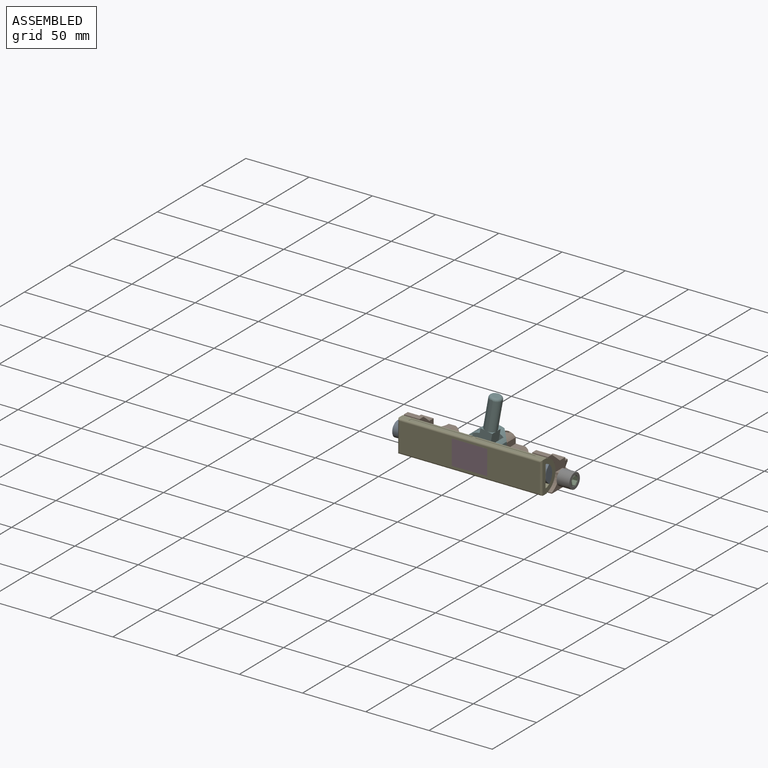
[diagram: assembled view]
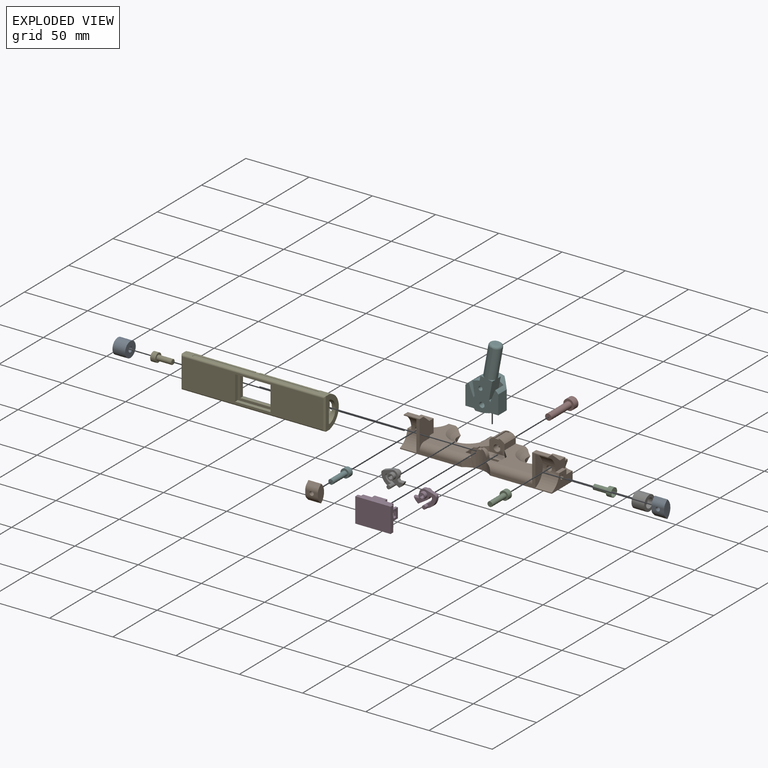
[diagram: exploded view]
GUIDED TOUR — MATED ASSEMBLY WITH SUBASSEMBLIES (Onshape document 3f575c8c6adcad1ca277dd56, AutoMate assembly 3f575c8c6adcad1ca277dd56_c90ff8e94e7f5d9ac81e3531_324395625136054d24e18bfe_default)

This assembly has 16 component occurrences arranged in 15 top-level units: 14 individual components plus 1 subassembly (S0). The tour has two levels: first the top level, where each subassembly is treated as one rigid unit; then each subassembly is toured internally in its own section (nesting deeper than one subassembly level is flattened into its subassembly's section).

Components are labeled P0..P15 across the whole record; subassembly units are labeled S0..S0. A mate is a constraint between two units; its type names the relative motion it leaves free:
  FASTENED — locks the two components together rigidly (no relative motion),
  REVOLUTE — leaves rotation about the listed axis free (a hinge),
  SLIDER — leaves translation along the listed axis free.
Axis/direction vectors are unit vectors and 'through' points are millimeter coordinates, both in the assembly's world frame.

TOP-LEVEL MATES (between units; each subassembly's internal mates are listed in its own section)
  1. REVOLUTE "Revolute 2": P15 <-> P4, axis (0.000, -1.000, 0.003) through (-16.70, -12.69, 11.49) mm
  2. FASTENED "Fastened 6": P10 <-> P9, direction (-1.000, 0.000, 0.000) through (-60.00, 0.00, 0.00) mm
  3. FASTENED "Fastened 7": P7 <-> P10, direction (-1.000, 0.000, 0.000) through (60.00, 0.00, 0.00) mm
  4. FASTENED "Fastened 3": P10 <-> P8, direction (0.000, 1.000, 0.000) through (0.00, 18.50, 0.00) mm
  5. FASTENED "Fastened 2": P10 <-> S0, direction (0.000, 0.000, 1.000) through (-13.00, -4.75, -4.00) mm
  6. FASTENED "Fastened 5": P10 <-> P11, direction (0.000, 1.000, 0.000) through (52.00, 2.00, 5.20) mm
  7. FASTENED "Fastened 8": P7 <-> P2, direction (1.000, 0.000, 0.000) through (66.00, 0.00, 0.00) mm
  8. FASTENED "Fastened 9": P13 <-> P9, direction (1.000, 0.000, 0.000) through (-66.00, 0.00, 0.00) mm
  9. FASTENED "Fastened 4": P10 <-> P14, direction (0.000, 1.000, 0.000) through (-52.00, 2.00, 5.20) mm
  10. REVOLUTE "Revolute 1": P4 <-> P10, axis (-1.000, 0.000, 0.000) through (47.00, -15.71, 5.20) mm
  11. FASTENED "Fastened 1": P12 <-> P4, direction (0.000, -1.000, 0.003) through (-12.00, -15.74, -2.50) mm
  12. REVOLUTE "Revolute 3": P3 <-> P4, axis (0.000, -1.000, 0.003) through (16.70, -12.69, 11.49) mm
  13. SLIDER "Slider 1": P14 <-> P1, axis (0.000, 1.000, 0.000) through (-52.00, -13.75, 5.20) mm

TOP-LEVEL ASSEMBLY ORDER
  1. P10 — the base component [order heuristic]
  2. P4 — core [order heuristic]
  3. S0 — core [order heuristic]
  4. P2 — core [order heuristic]
  5. P8 — core [order heuristic]
  6. P13 — core [order heuristic]
  7. P11 — core [order heuristic]
  8. P14 — core [order heuristic]
  9. P7 — core [order heuristic]
  10. P3 — core [order heuristic]
  11. P12 — core [order heuristic]
  12. P9 — core [order heuristic]
  13. P15 — core [order heuristic]
  14. P0 [order verified]
  15. P1 [order verified]
Order-tag legend:
  [order verified] — this step's position reverses a verified removal order: the component was checked to insert without passing through the ones already placed.
  [order heuristic] — the first 13 components form the assembly's core: parts whose collision-free extraction could not be verified, listed in mate-graph order.

Of the 16 component occurrences, 1 carries the full construction recipe — the FeatureScript program that regenerates the part's solid from scratch; the rest are supplied as boundary geometry only. Each toured unit is shown spotlighted twice — assembled, then exploded with a leader line back to its socket (green = recipe-attached component, orange = geometry-only, blue = subassembly unit; the rest desaturated gray).
NOTE — this tour is split across 2 documents so each fits a 32k-token context. This is document 1: the component sections continue in the remaining 1 document, each repeating the header above.
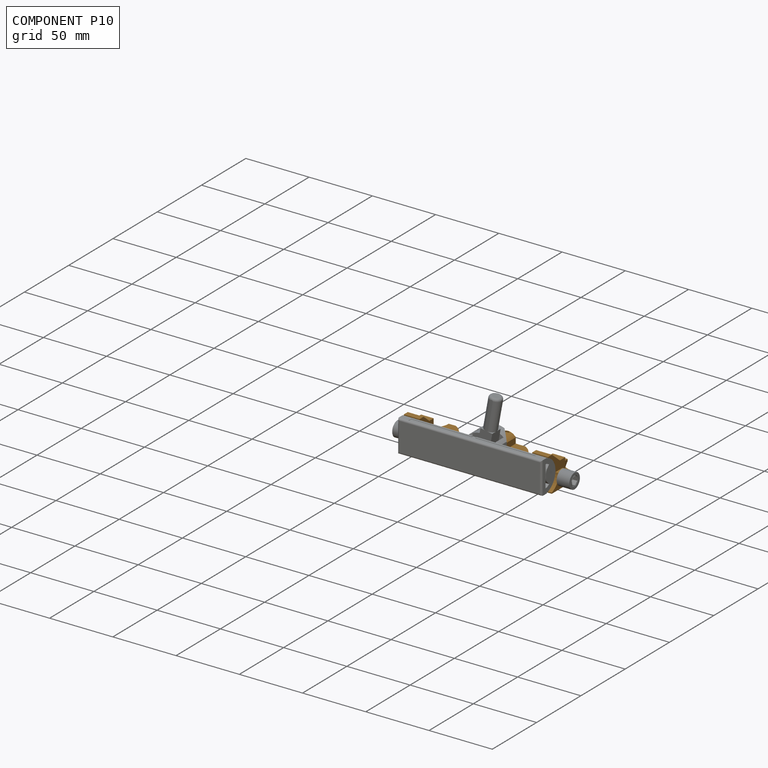
[diagram: component P10 — assembled]
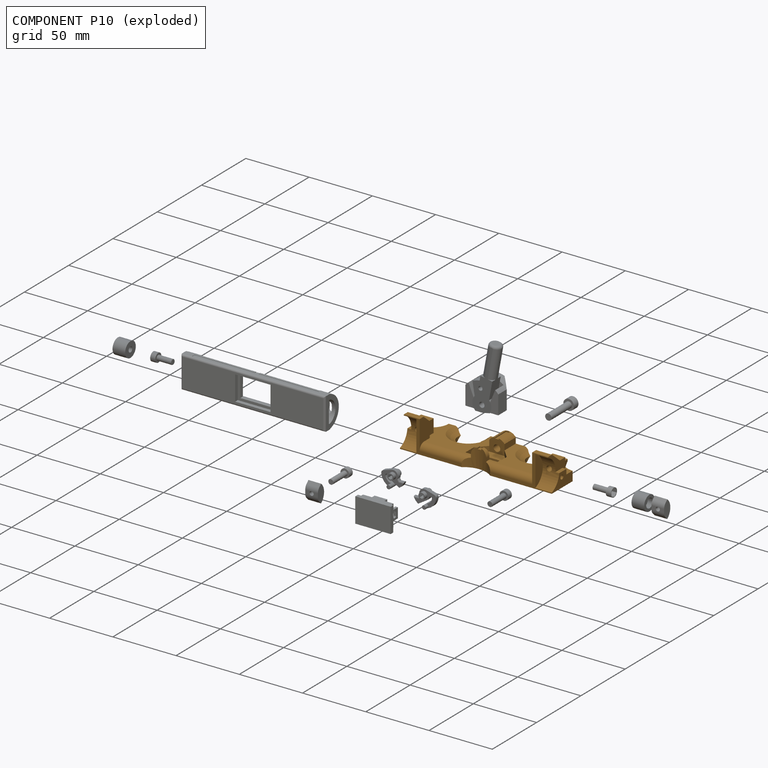
[diagram: component P10 — exploded]
COMPONENT P10 — geometry summary (no construction recipe available for this part):
  bounding box: 120.1 x 37.3 x 25.5 mm
  B-rep topology: 1 solid, 84 faces, 476 edges
  volume: 25995 mm^3 (23% of its bounding box)
  symmetry: mirror-symmetric across its x mid-plane
Held by: FASTENED mate "Fastened 6" to P9; FASTENED mate "Fastened 7" to P7; FASTENED mate "Fastened 3" to P8; FASTENED mate "Fastened 2" to P5; FASTENED mate "Fastened 5" to P11; FASTENED mate "Fastened 4" to P14; REVOLUTE mate "Revolute 1" to P4.
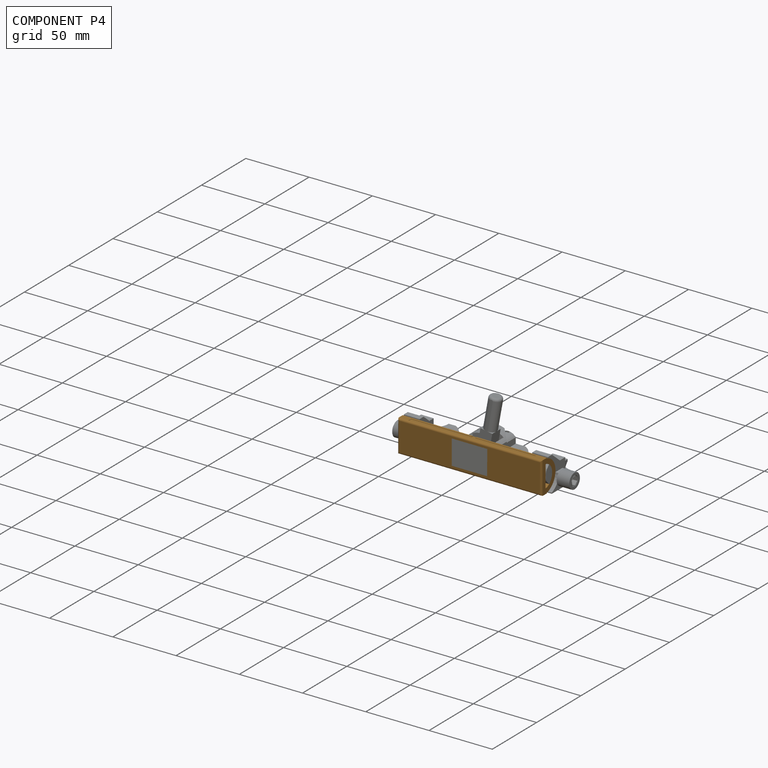
[diagram: component P4 — assembled]
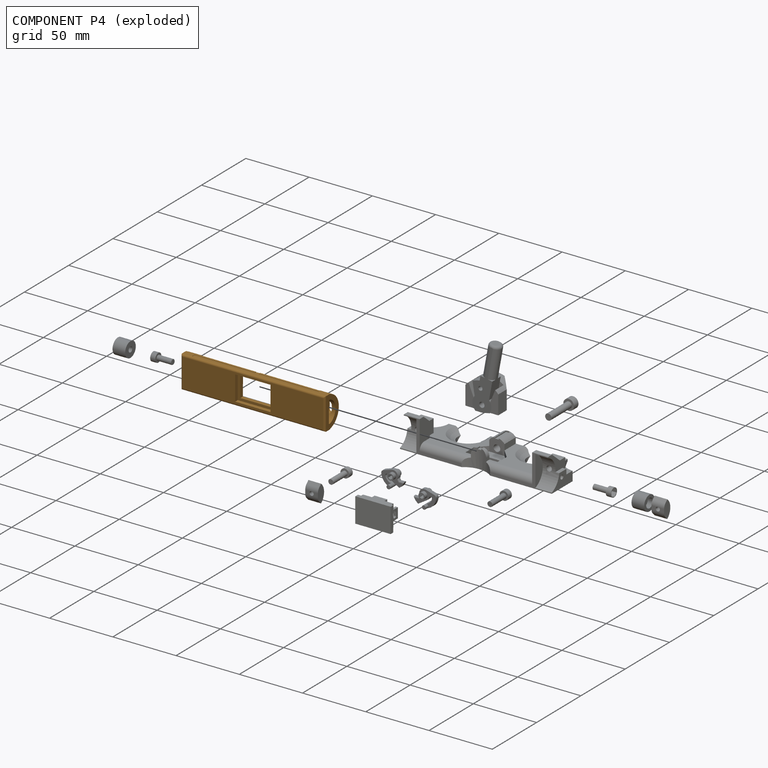
[diagram: component P4 — exploded]
COMPONENT P4 — geometry summary (no construction recipe available for this part):
  bounding box: 114.0 x 25.4 x 15.7 mm
  B-rep topology: 1 solid, 74 faces, 398 edges
  volume: 12789 mm^3 (28% of its bounding box)
  symmetry: mirror-symmetric across its x mid-plane
Held by: REVOLUTE mate "Revolute 2" to P15; REVOLUTE mate "Revolute 1" to P10; FASTENED mate "Fastened 1" to P12; REVOLUTE mate "Revolute 3" to P3.
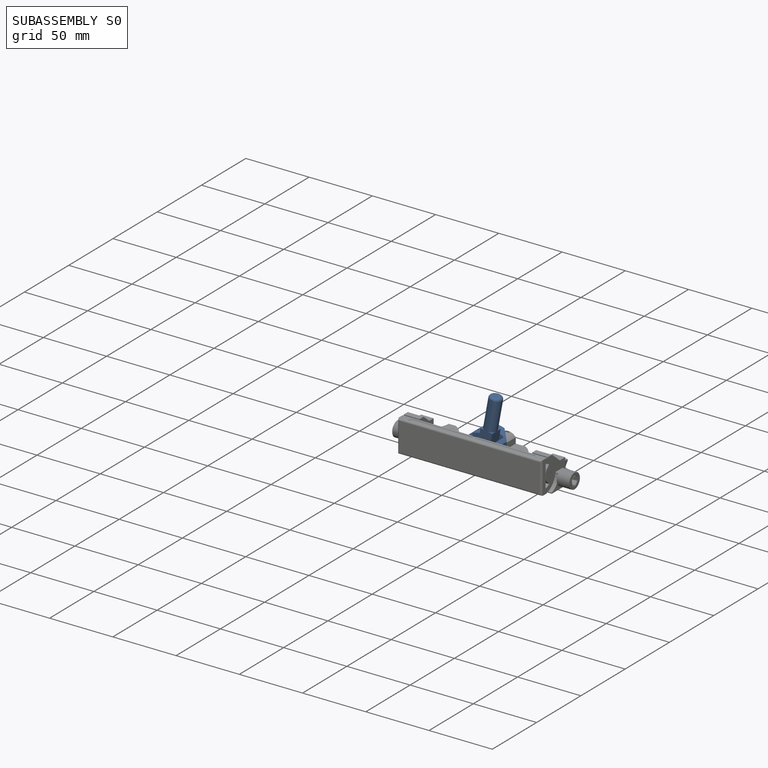
[diagram: subassembly S0 — assembled]
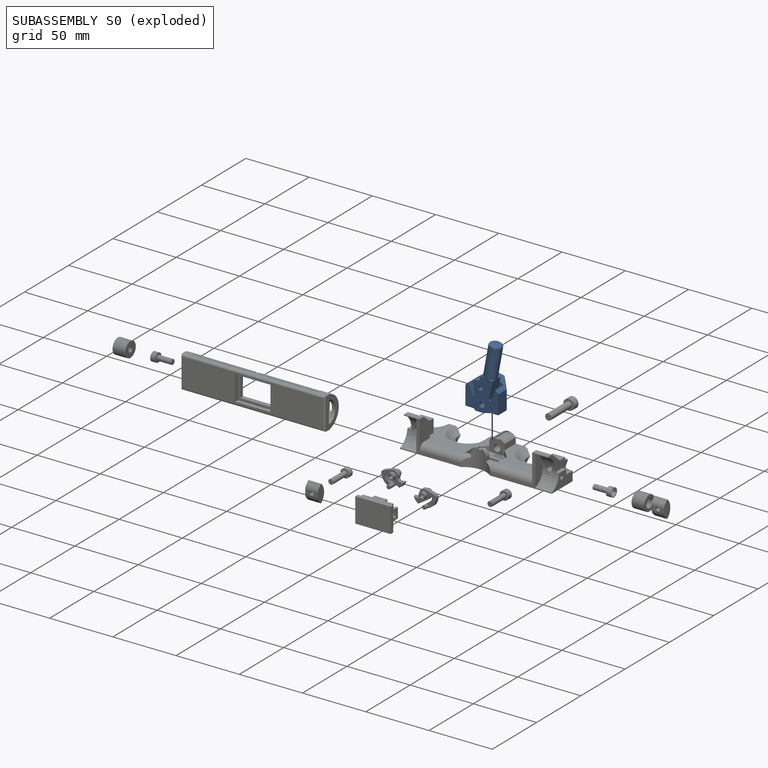
[diagram: subassembly S0 — exploded]
SUBASSEMBLY S0 — 2 components (P5, P6), of which 1 recipe-attached; toured below.
Held by: FASTENED mate "Fastened 2" to P10.
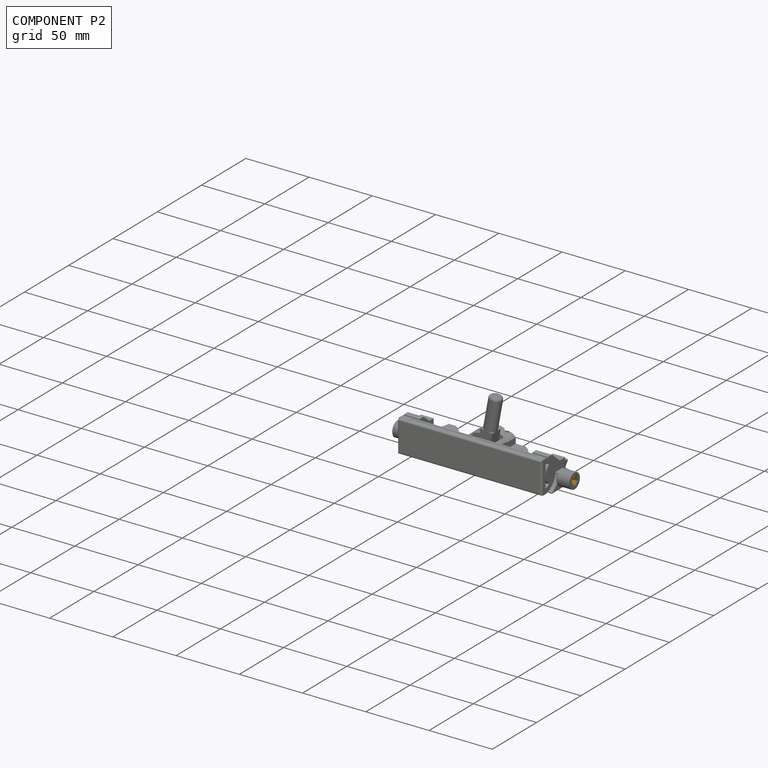
[diagram: component P2 — assembled]
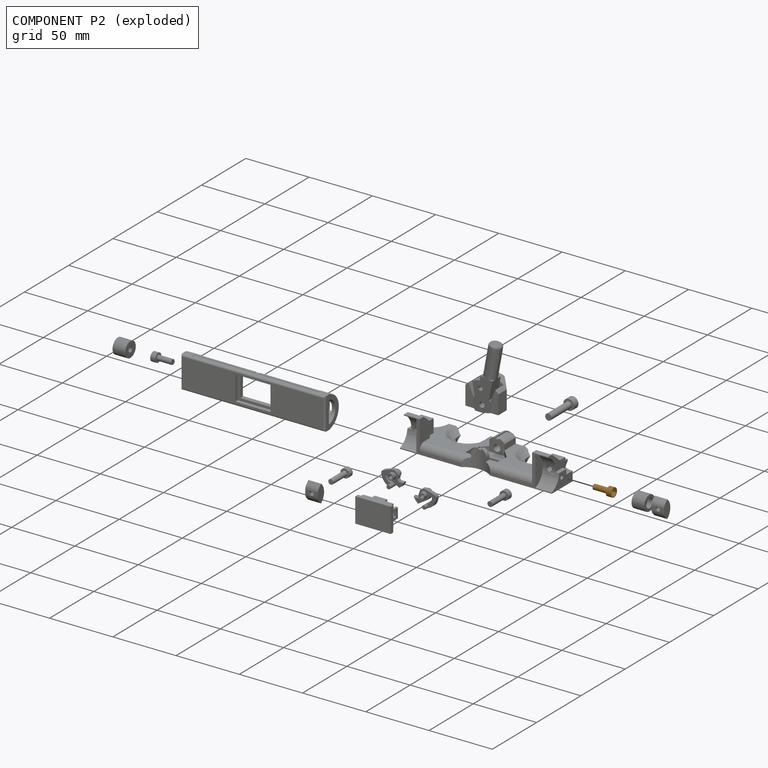
[diagram: component P2 — exploded]
COMPONENT P2 — geometry summary (no construction recipe available for this part):
  bounding box: 15.5 x 7.0 x 7.0 mm
  B-rep topology: 1 solid, 12 faces, 48 edges
  volume: 189 mm^3 (25% of its bounding box)
  symmetry: 6-fold rotationally symmetric about the y axis
Held by: FASTENED mate "Fastened 8" to P7.
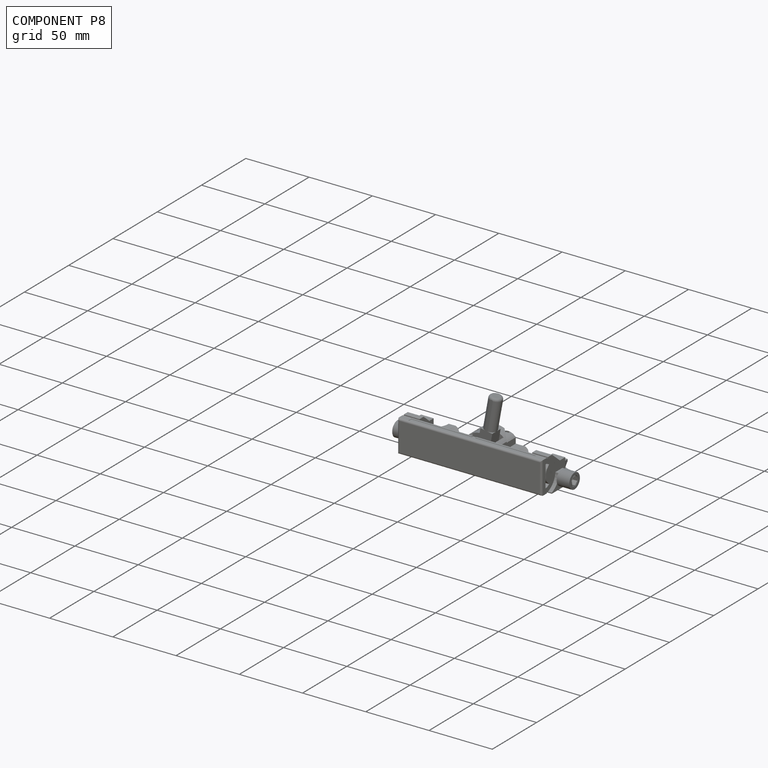
[diagram: component P8 — assembled]
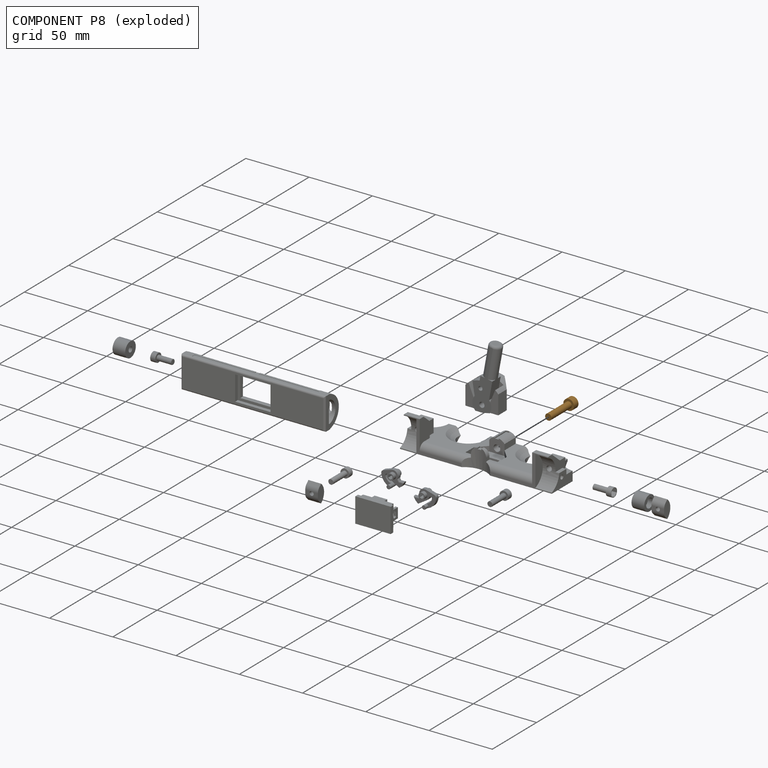
[diagram: component P8 — exploded]
COMPONENT P8 — geometry summary (no construction recipe available for this part):
  bounding box: 28.0 x 8.5 x 8.5 mm
  B-rep topology: 1 solid, 12 faces, 48 edges
  volume: 664 mm^3 (33% of its bounding box)
  symmetry: 6-fold rotationally symmetric about the y axis
Held by: FASTENED mate "Fastened 3" to P10.
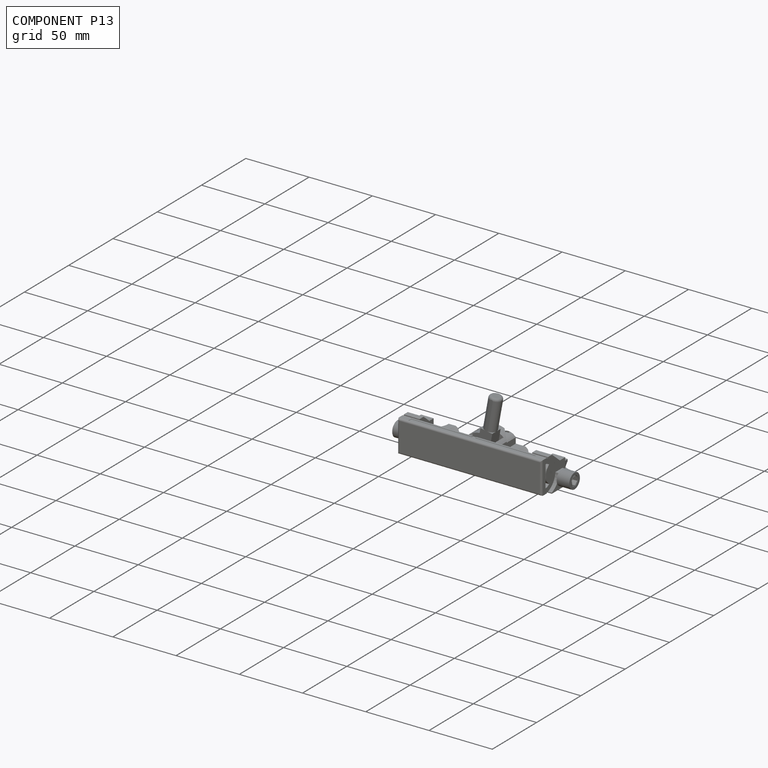
[diagram: component P13 — assembled]
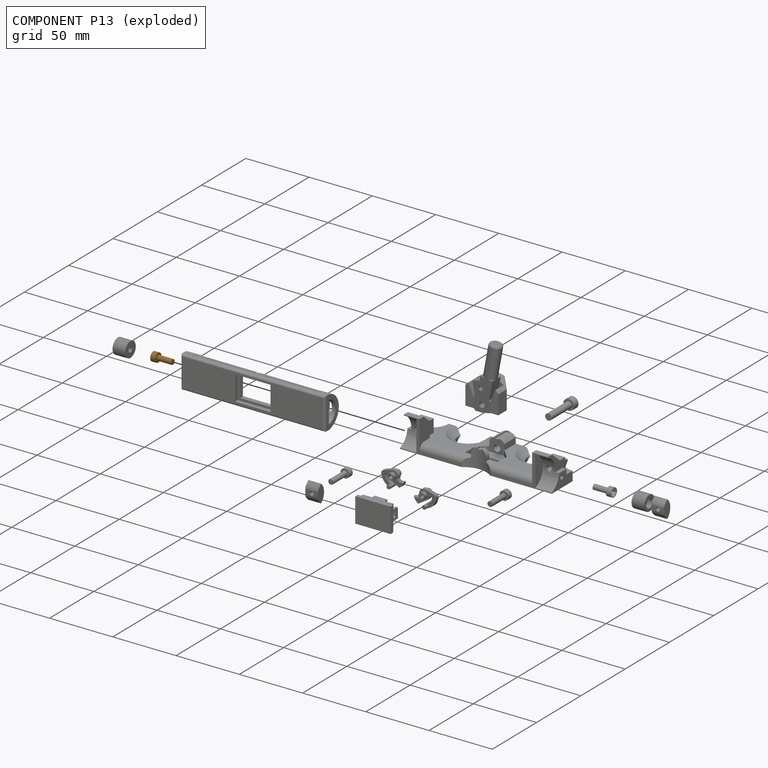
[diagram: component P13 — exploded]
COMPONENT P13 — geometry summary (no construction recipe available for this part):
  bounding box: 15.5 x 7.0 x 7.0 mm
  B-rep topology: 1 solid, 12 faces, 48 edges
  volume: 189 mm^3 (25% of its bounding box)
  symmetry: 6-fold rotationally symmetric about the y axis
Held by: FASTENED mate "Fastened 9" to P9.
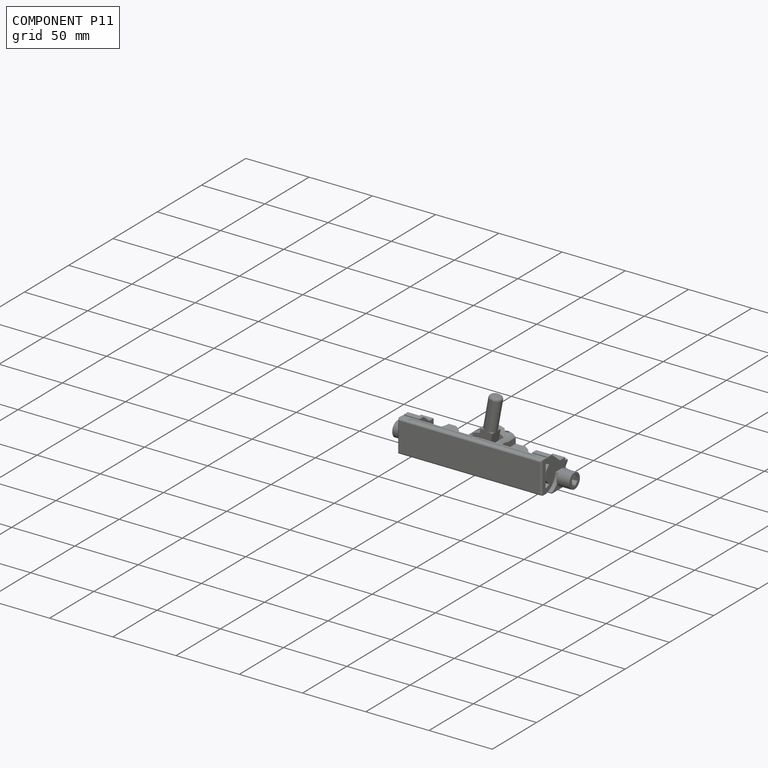
[diagram: component P11 — assembled]
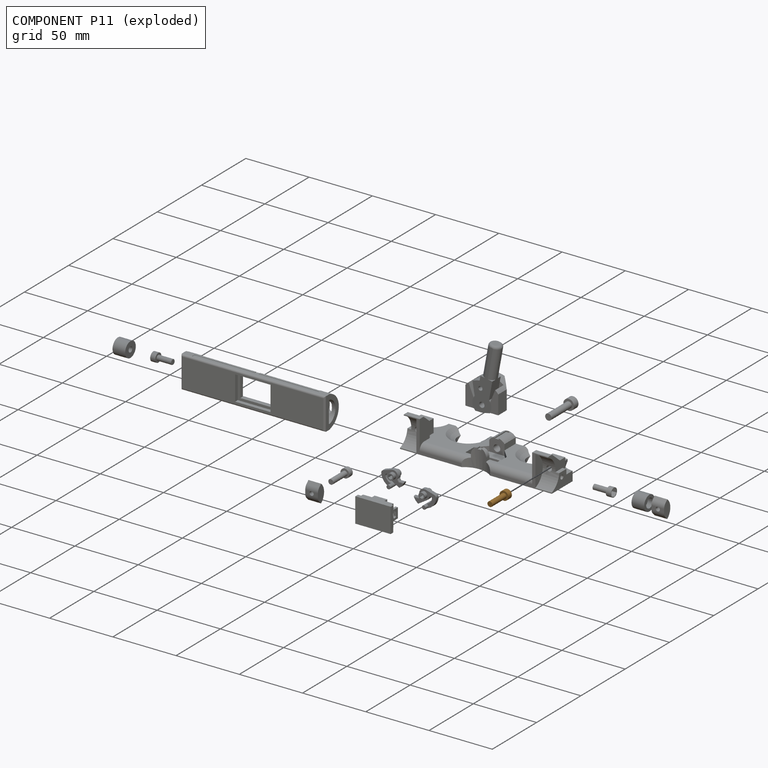
[diagram: component P11 — exploded]
COMPONENT P11 — geometry summary (no construction recipe available for this part):
  bounding box: 19.8 x 7.0 x 7.0 mm
  B-rep topology: 1 solid, 12 faces, 48 edges
  volume: 243 mm^3 (25% of its bounding box)
  symmetry: 6-fold rotationally symmetric about the y axis
Held by: FASTENED mate "Fastened 5" to P10.
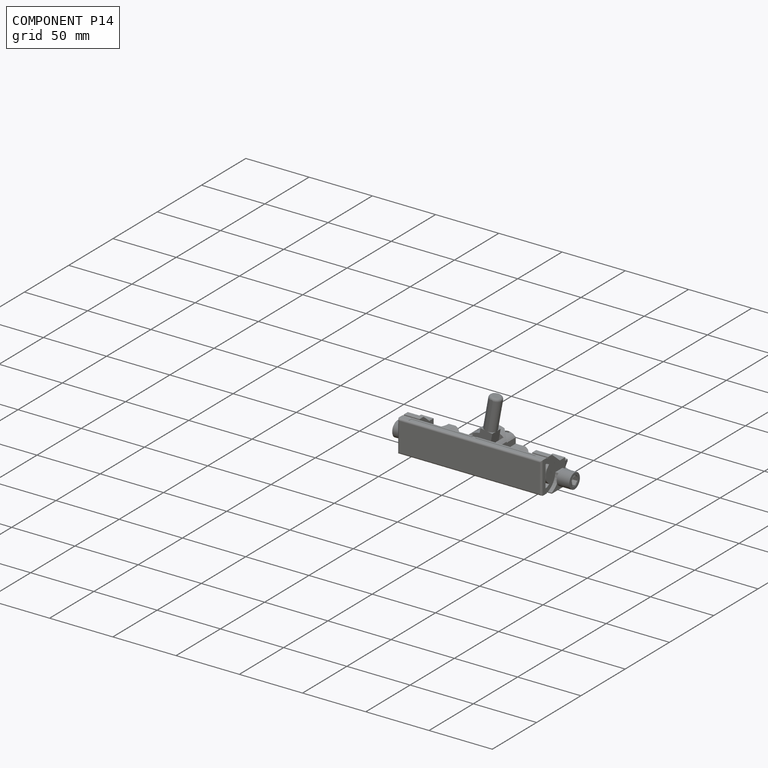
[diagram: component P14 — assembled]
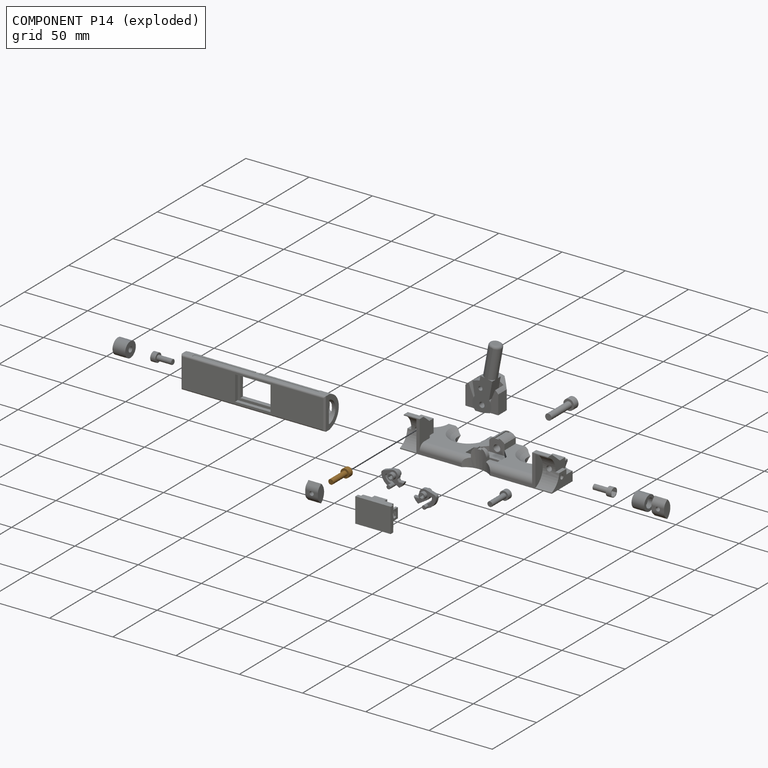
[diagram: component P14 — exploded]
COMPONENT P14 — geometry summary (no construction recipe available for this part):
  bounding box: 19.8 x 7.0 x 7.0 mm
  B-rep topology: 1 solid, 12 faces, 48 edges
  volume: 243 mm^3 (25% of its bounding box)
  symmetry: 6-fold rotationally symmetric about the y axis
Held by: FASTENED mate "Fastened 4" to P10; SLIDER mate "Slider 1" to P1.
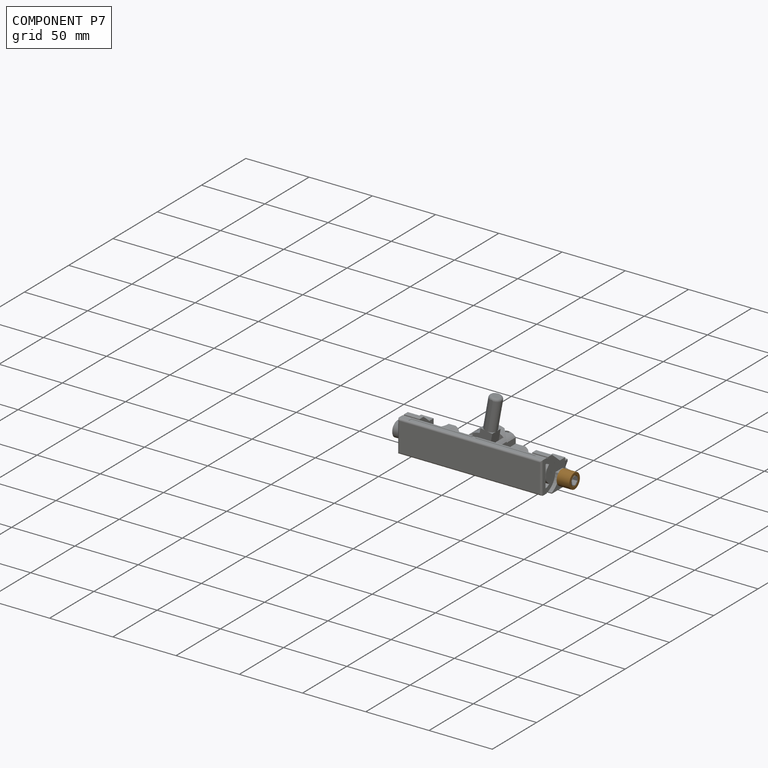
[diagram: component P7 — assembled]
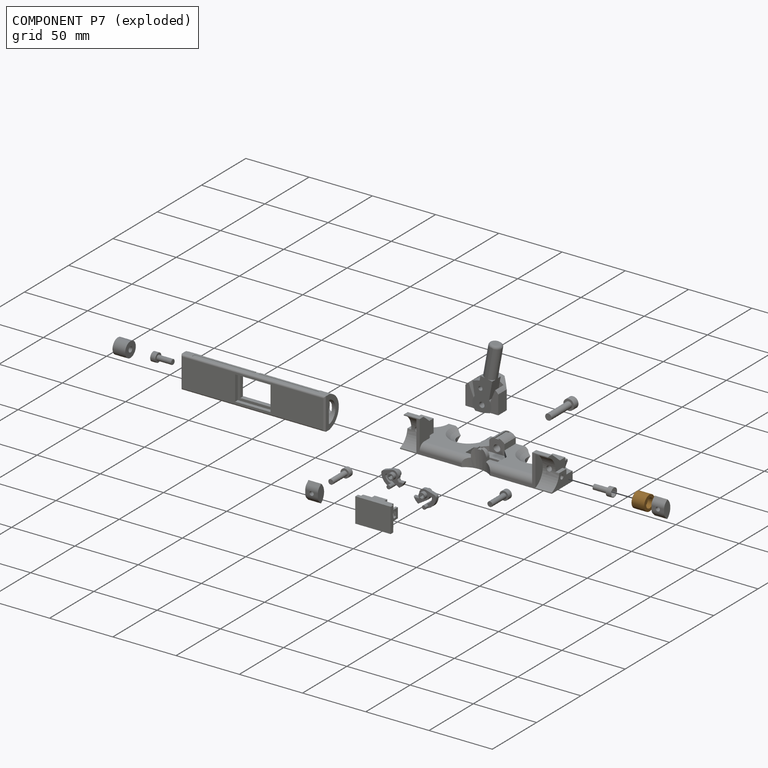
[diagram: component P7 — exploded]
COMPONENT P7 — geometry summary (no construction recipe available for this part):
  bounding box: 12.0 x 12.0 x 10.0 mm
  B-rep topology: 1 solid, 6 faces, 20 edges
  volume: 871 mm^3 (60% of its bounding box)
  symmetry: revolution-symmetric about the x axis through its bounding-box center; mirror-symmetric across its y mid-plane, z mid-plane
Held by: FASTENED mate "Fastened 7" to P10; FASTENED mate "Fastened 8" to P2.
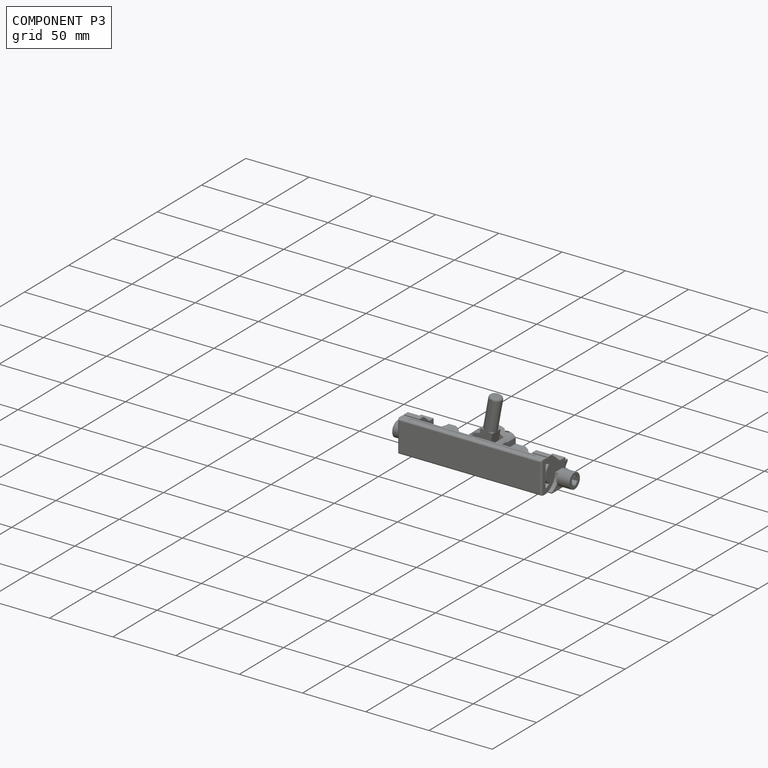
[diagram: component P3 — assembled]
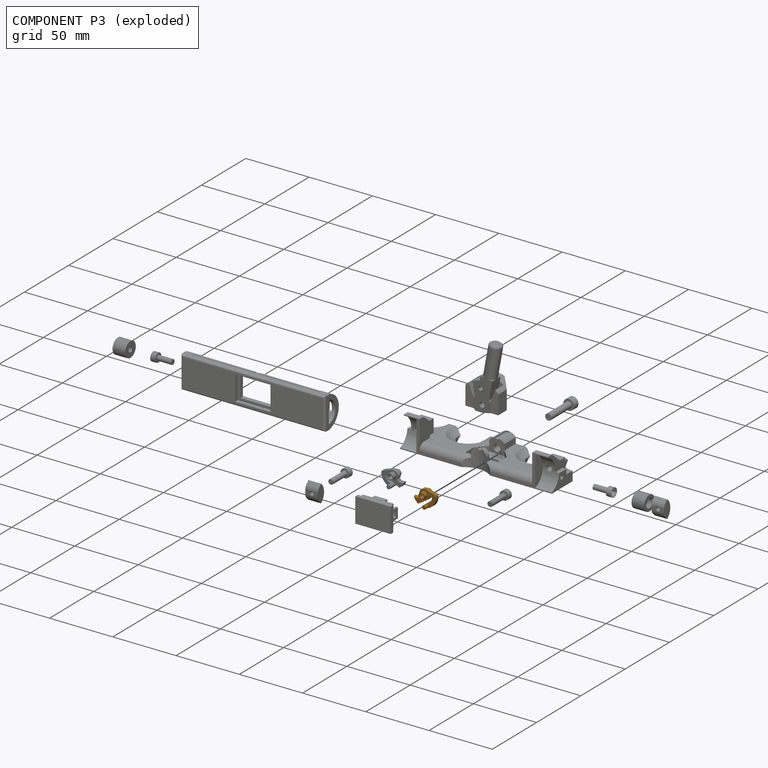
[diagram: component P3 — exploded]
COMPONENT P3 — geometry summary (no construction recipe available for this part):
  bounding box: 17.8 x 13.1 x 9.0 mm
  B-rep topology: 1 solid, 31 faces, 154 edges
  volume: 455 mm^3 (22% of its bounding box)
  symmetry: mirror-symmetric across its y mid-plane
Held by: REVOLUTE mate "Revolute 3" to P4.
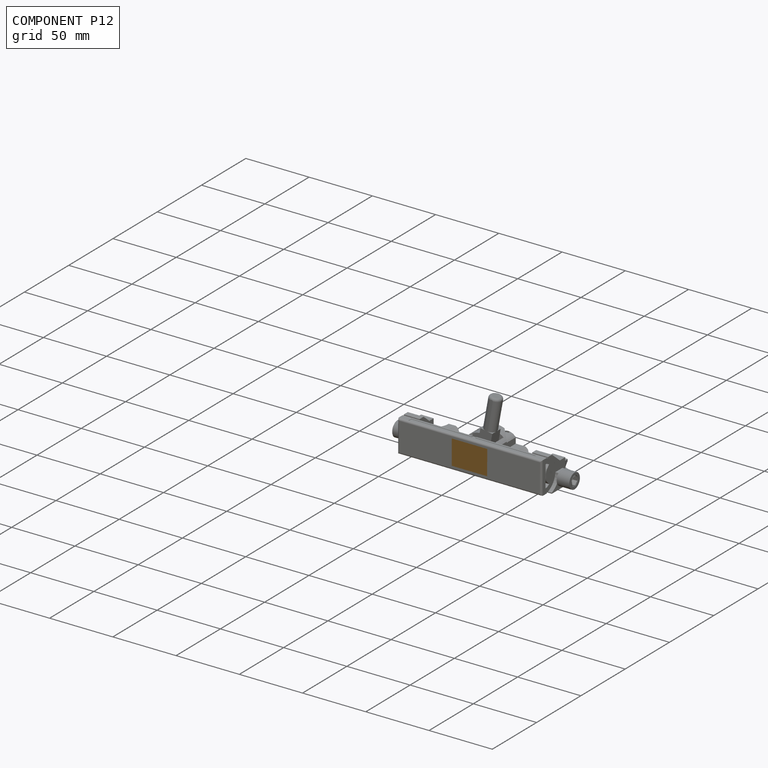
[diagram: component P12 — assembled]
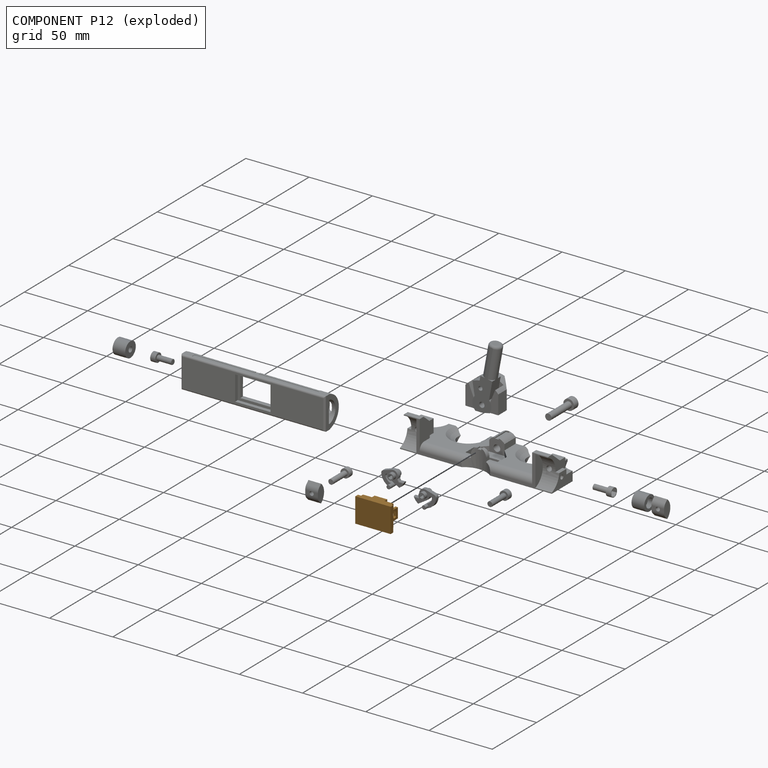
[diagram: component P12 — exploded]
COMPONENT P12 — geometry summary (no construction recipe available for this part):
  bounding box: 28.0 x 19.5 x 11.0 mm
  B-rep topology: 1 solid, 56 faces, 312 edges
  volume: 2113 mm^3 (35% of its bounding box)
  symmetry: mirror-symmetric across its x mid-plane
Held by: FASTENED mate "Fastened 1" to P4.
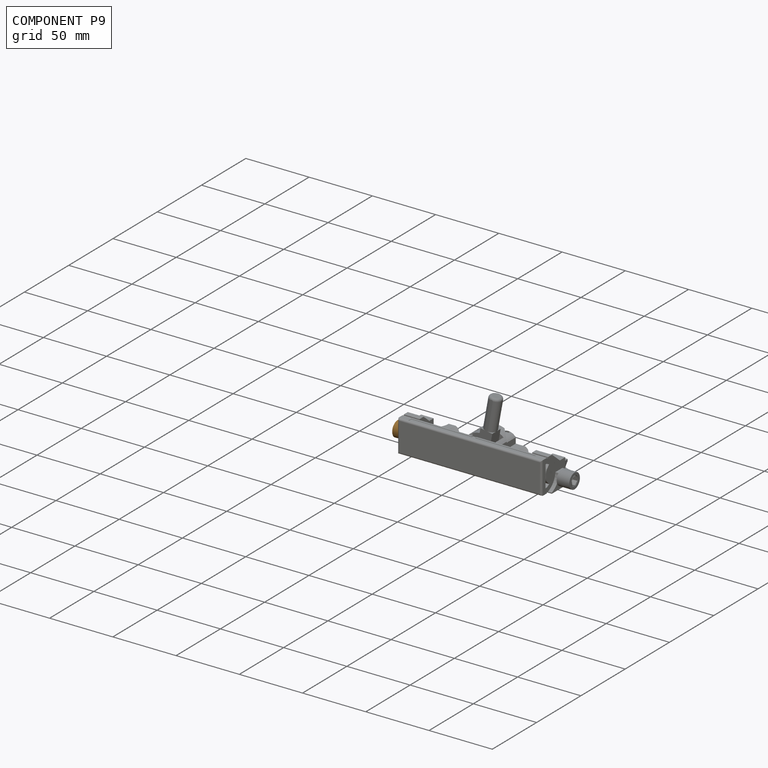
[diagram: component P9 — assembled]
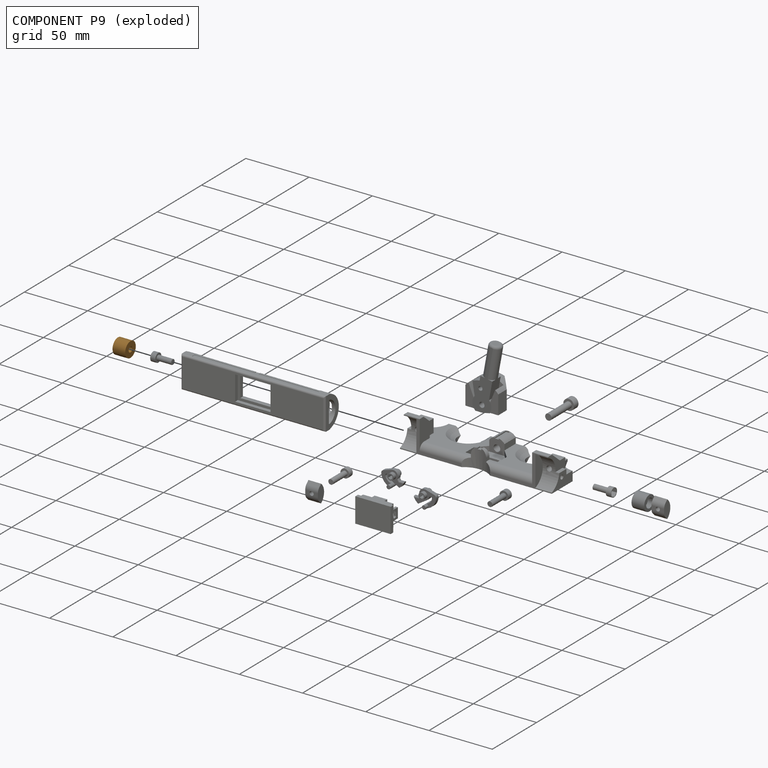
[diagram: component P9 — exploded]
COMPONENT P9 — geometry summary (no construction recipe available for this part):
  bounding box: 12.0 x 12.0 x 10.0 mm
  B-rep topology: 1 solid, 6 faces, 20 edges
  volume: 871 mm^3 (60% of its bounding box)
  symmetry: revolution-symmetric about the x axis through its bounding-box center; mirror-symmetric across its y mid-plane, z mid-plane
Held by: FASTENED mate "Fastened 6" to P10; FASTENED mate "Fastened 9" to P13.
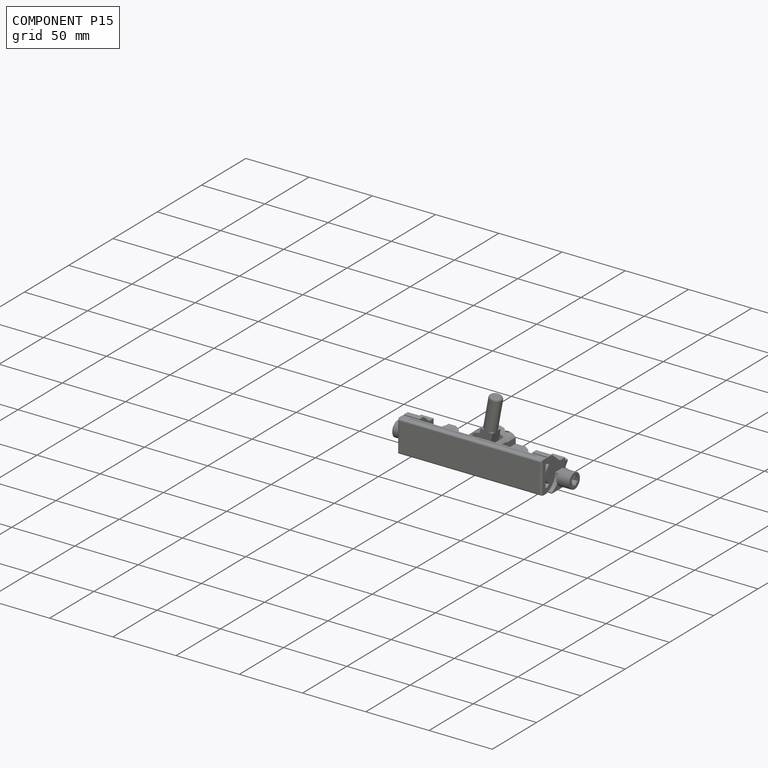
[diagram: component P15 — assembled]
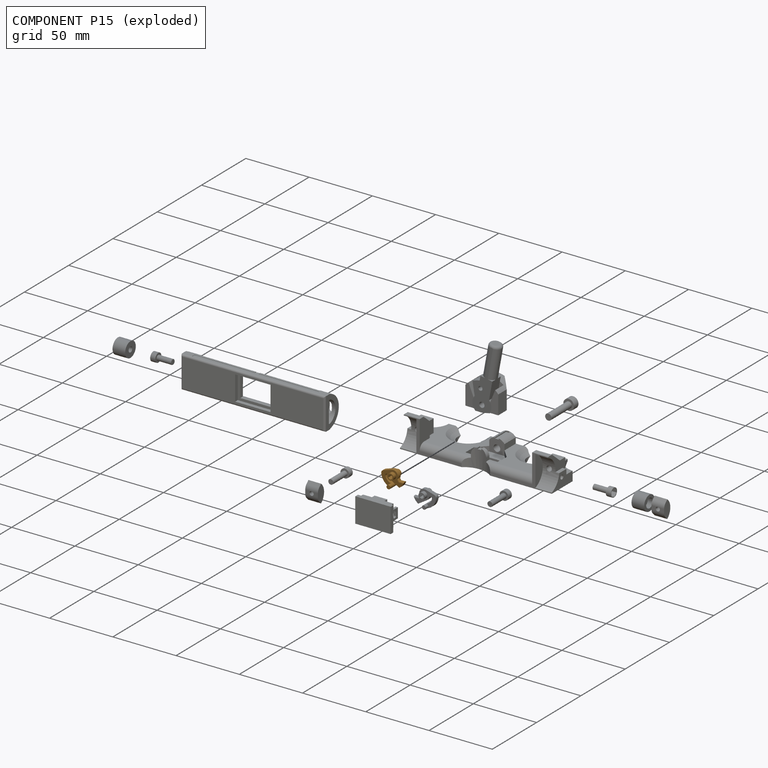
[diagram: component P15 — exploded]
COMPONENT P15 — geometry summary (no construction recipe available for this part):
  bounding box: 17.8 x 13.1 x 9.0 mm
  B-rep topology: 1 solid, 31 faces, 154 edges
  volume: 455 mm^3 (22% of its bounding box)
  symmetry: mirror-symmetric across its y mid-plane
Held by: REVOLUTE mate "Revolute 2" to P4.
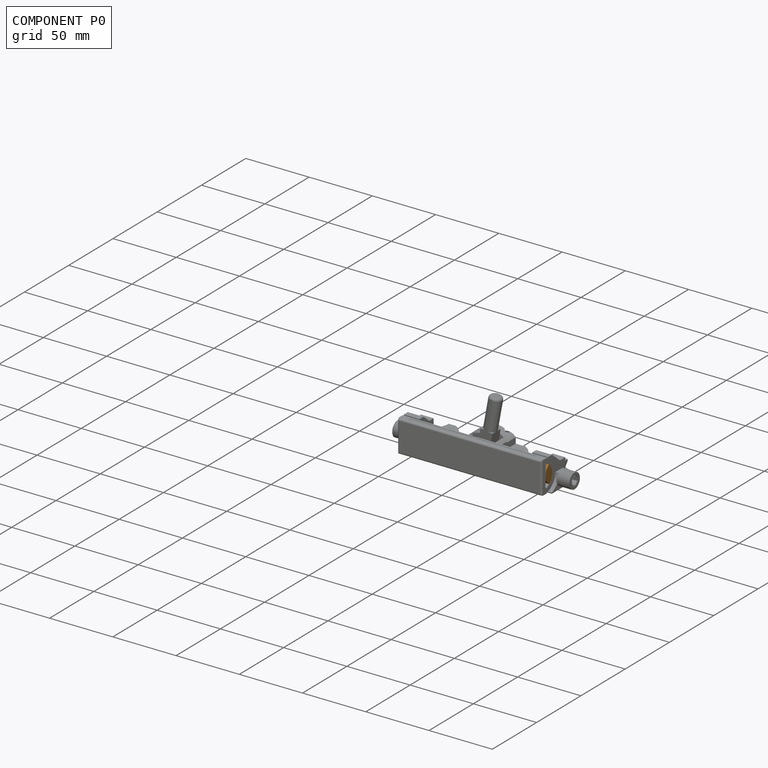
[diagram: component P0 — assembled]
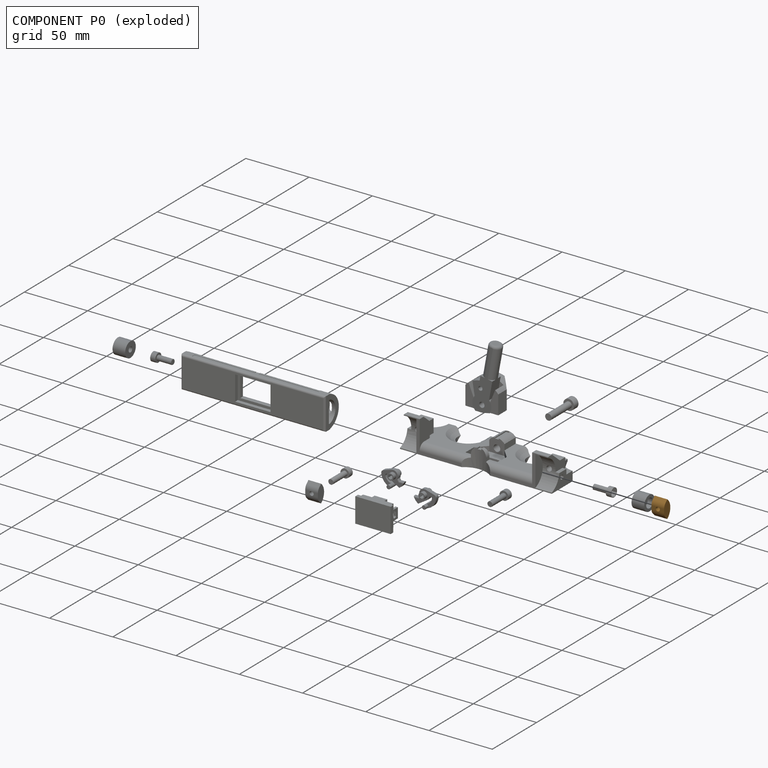
[diagram: component P0 — exploded]
COMPONENT P0 — geometry summary (no construction recipe available for this part):
  bounding box: 14.0 x 10.0 x 7.0 mm
  B-rep topology: 1 solid, 12 faces, 66 edges
  volume: 645 mm^3 (66% of its bounding box)
  symmetry: 2-fold rotationally symmetric about the z axis; mirror-symmetric across its x mid-plane, y mid-plane
Held by: no mates (free).
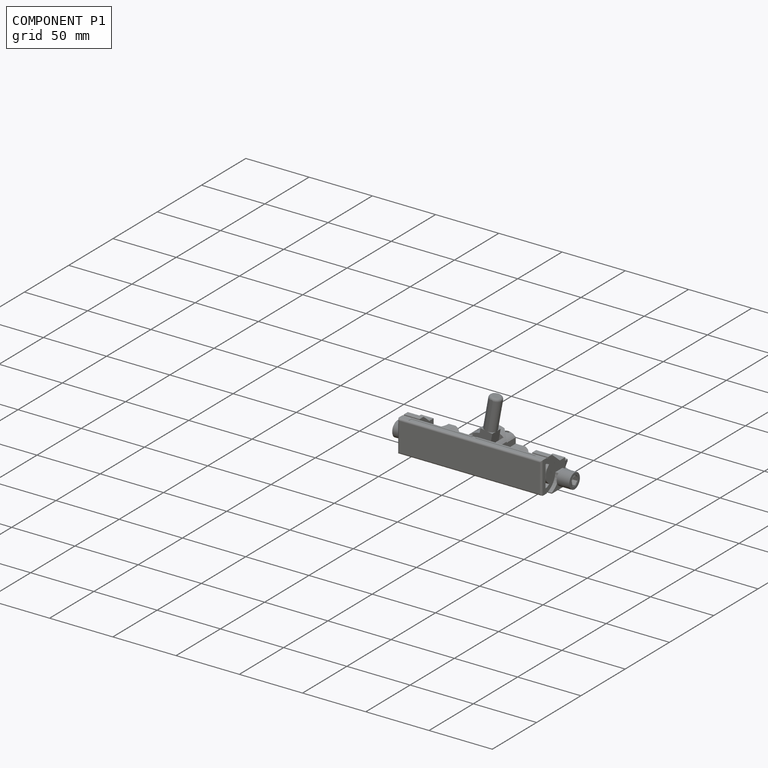
[diagram: component P1 — assembled]
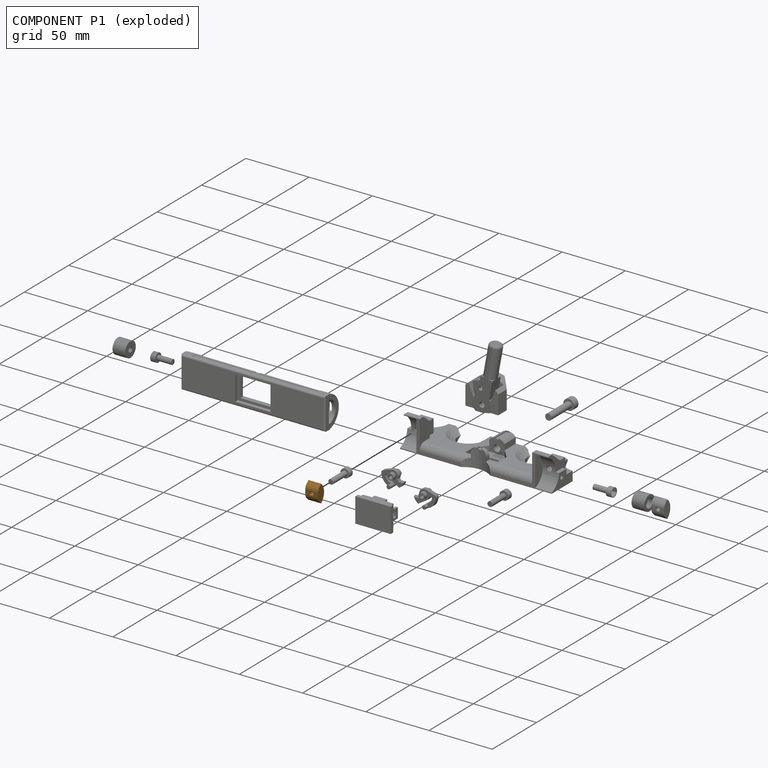
[diagram: component P1 — exploded]
COMPONENT P1 — geometry summary (no construction recipe available for this part):
  bounding box: 14.0 x 10.0 x 7.0 mm
  B-rep topology: 1 solid, 12 faces, 66 edges
  volume: 645 mm^3 (66% of its bounding box)
  symmetry: 2-fold rotationally symmetric about the z axis; mirror-symmetric across its x mid-plane, y mid-plane
Held by: SLIDER mate "Slider 1" to P14.
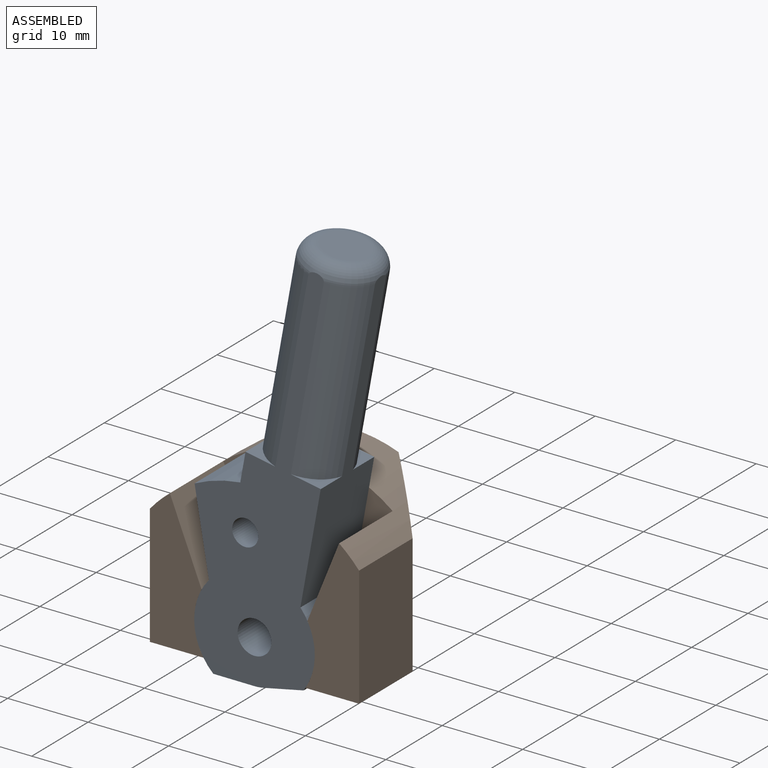
[diagram: subassembly S0 — assembled view]
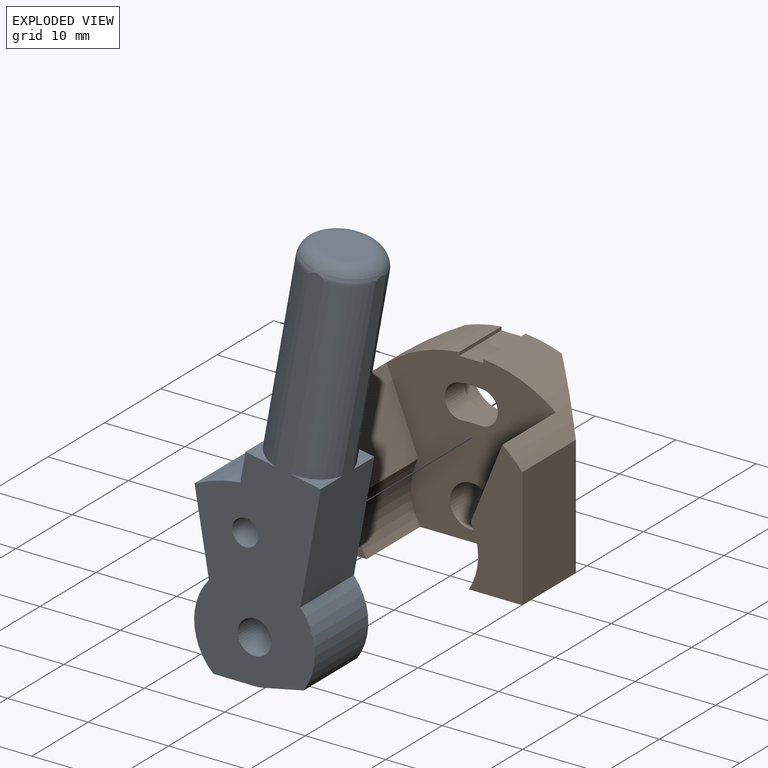
[diagram: subassembly S0 — exploded view]
SUBASSEMBLY S0 TOUR — 2 components, shown here in isolation at its own camera.

INTERNAL MATES
  1. REVOLUTE "Revolute 1": P5 <-> P6, axis (0.000, 1.000, 0.000) through (0.00, 4.75, 0.00) mm
  2. REVOLUTE "Revolute 1": P5 <-> P6, axis (0.000, 1.000, 0.000) through (0.00, 4.75, 0.00) mm

ASSEMBLY ORDER (within the subassembly)
  1. P5 — the base component [order heuristic]
  2. P6 [order heuristic]
Order-tag legend:
  [order heuristic] — this assembly is geometrically interlocked (no collision-free removal order exists), so components are listed in mate-graph order; insertion feasibility is not verified.
